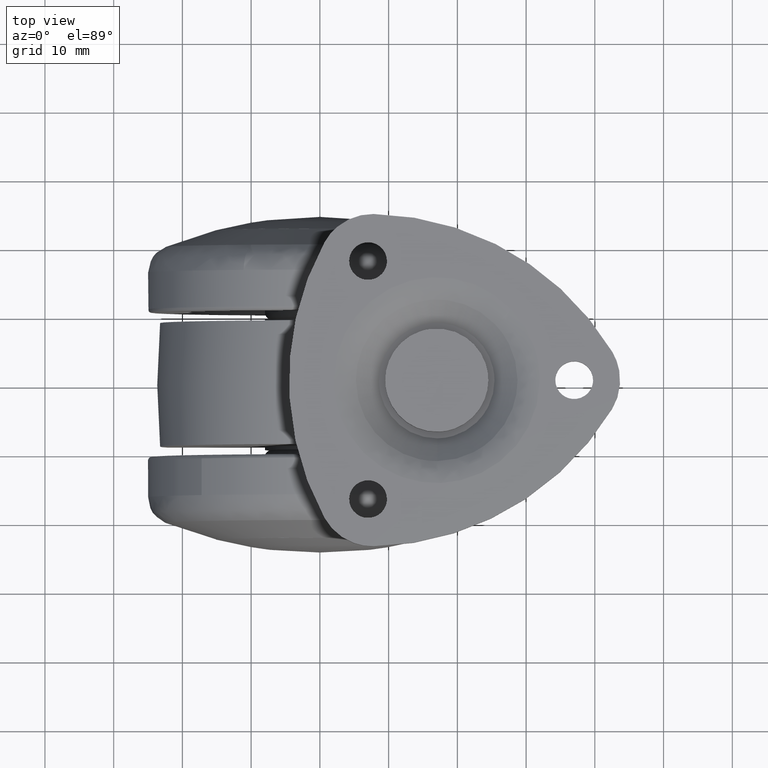
[diagram: clean part render]
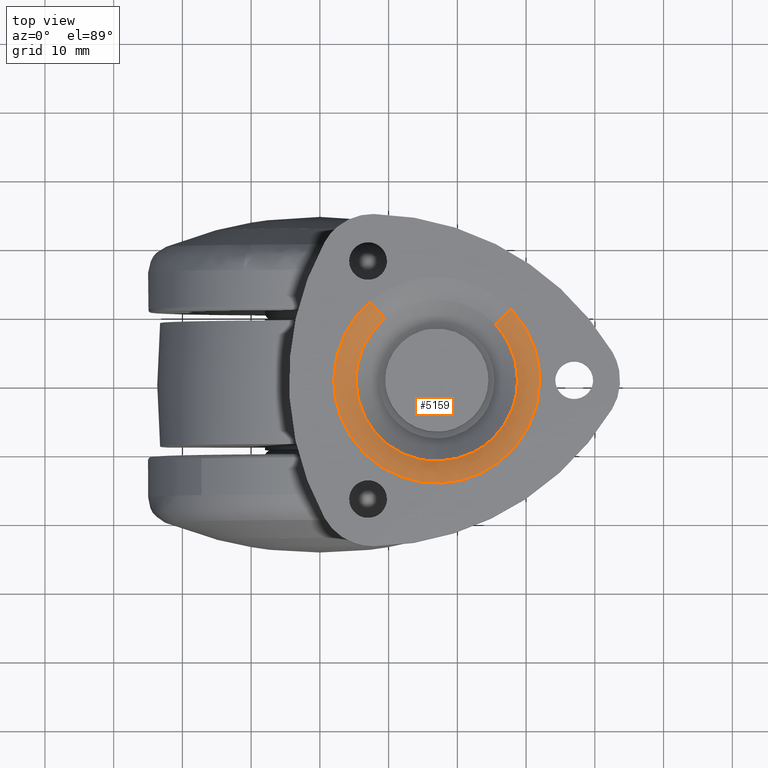
[diagram: same view with one face highlighted and labeled with its STEP entity id]
A machine part, top view. The second image highlights one B-rep face of the part: STEP entity #5159.
In plain terms, the highlighted face is a freeform B-spline surface patch.
Its self-contained STEP definition (entity closure, byte-faithful):
#3528=CARTESIAN_POINT('',(25.109645931739351,-8.515503311656913,38.824556818167473));
#3529=VERTEX_POINT('',#3528);
#3530=CARTESIAN_POINT('',(28.759258215934199,0.0,38.824556818167437));
#3531=VERTEX_POINT('',#3530);
#3532=CARTESIAN_POINT('',(25.109645931739347,-8.515503311656913,38.824556818167459));
#3533=CARTESIAN_POINT('',(28.759258215934203,-5.039835188500454,38.824556818167444));
#3534=CARTESIAN_POINT('',(28.759258215934199,0.0,38.824556818167437));
#3542=(BOUNDED_CURVE()B_SPLINE_CURVE(2,(#3532,#3533,#3534),.UNSPECIFIED.,.F.,.U.)B_SPLINE_CURVE_WITH_KNOTS((3,3),(0.871317023849570,1.0),.UNSPECIFIED.)CURVE()GEOMETRIC_REPRESENTATION_ITEM()RATIONAL_B_SPLINE_CURVE((0.853680523245774,0.849238515635224,1.0))REPRESENTATION_ITEM(''));
#3543=EDGE_CURVE('',#3529,#3531,#3542,.T.);
#3545=CARTESIAN_POINT('',(25.515912687140251,8.109216047239515,38.824556818410457));
#3546=VERTEX_POINT('',#3545);
#3547=CARTESIAN_POINT('',(28.759258215934199,0.0,38.824556818167437));
#3548=CARTESIAN_POINT('',(28.759258215934199,4.703208958527371,38.824556818167444));
#3549=CARTESIAN_POINT('',(25.515912687140251,8.109216047239515,38.824556818410471));
#3557=(BOUNDED_CURVE()B_SPLINE_CURVE(2,(#3547,#3548,#3549),.UNSPECIFIED.,.F.,.U.)B_SPLINE_CURVE_WITH_KNOTS((3,3),(0.0,0.121309405660615),.UNSPECIFIED.)CURVE()GEOMETRIC_REPRESENTATION_ITEM()RATIONAL_B_SPLINE_CURVE((1.0,0.857877190814862,0.853681049734253))REPRESENTATION_ITEM(''));
#3558=EDGE_CURVE('',#3531,#3546,#3557,.T.);
#3560=CARTESIAN_POINT('',(9.391101867600671,8.965758361935453,38.824556818340369));
#3561=VERTEX_POINT('',#3560);
#3577=CARTESIAN_POINT('',(5.240741784065802,0.0,38.824556818167437));
#3578=VERTEX_POINT('',#3577);
#3579=CARTESIAN_POINT('',(9.391101867600671,8.965758361935453,38.824556818340376));
#3580=CARTESIAN_POINT('',(5.240741784065802,5.443505606946551,38.824556818167444));
#3581=CARTESIAN_POINT('',(5.240741784065802,0.0,38.824556818167437));
#3589=(BOUNDED_CURVE()B_SPLINE_CURVE(2,(#3579,#3580,#3581),.UNSPECIFIED.,.F.,.U.)B_SPLINE_CURVE_WITH_KNOTS((3,3),(0.362668370166600,0.500000000000000),.UNSPECIFIED.)CURVE()GEOMETRIC_REPRESENTATION_ITEM()RATIONAL_B_SPLINE_CURVE((0.854978670802094,0.839105987572791,1.0))REPRESENTATION_ITEM(''));
#3590=EDGE_CURVE('',#3561,#3578,#3589,.T.);
#3592=CARTESIAN_POINT('',(17.102617584279649,-11.758810459416919,38.824556818170322));
#3593=VERTEX_POINT('',#3592);
#3594=CARTESIAN_POINT('',(5.240741784065802,0.0,38.824556818167437));
#3595=CARTESIAN_POINT('',(5.240741784065801,-11.759258215934201,38.824556818167444));
#3596=CARTESIAN_POINT('',(17.0,-11.759258215934199,38.824556818167437));
#3597=CARTESIAN_POINT('',(17.051309769011041,-11.759258215934207,38.824556818167437));
#3598=CARTESIAN_POINT('',(17.102617584279649,-11.758810459416926,38.824556818170329));
#3606=(BOUNDED_CURVE()B_SPLINE_CURVE(2,(#3594,#3595,#3596,#3597,#3598),.UNSPECIFIED.,.F.,.U.)B_SPLINE_CURVE_WITH_KNOTS((3,2,3),(0.500000000000000,0.750000000000000,0.751539894335697),.UNSPECIFIED.)CURVE()GEOMETRIC_REPRESENTATION_ITEM()RATIONAL_B_SPLINE_CURVE((1.0,0.707106781186548,1.0,0.998195901565540,0.996414028098762))REPRESENTATION_ITEM(''));
#3607=EDGE_CURVE('',#3578,#3593,#3606,.T.);
#3687=CARTESIAN_POINT('',(17.102617584279653,-11.758810459416923,38.824556818170322));
#3688=CARTESIAN_POINT('',(21.746578891394577,-11.718283223042187,38.824556818167451));
#3689=CARTESIAN_POINT('',(25.109645931739347,-8.515503311656913,38.824556818167451));
#3697=(BOUNDED_CURVE()B_SPLINE_CURVE(2,(#3687,#3688,#3689),.UNSPECIFIED.,.F.,.U.)B_SPLINE_CURVE_WITH_KNOTS((3,3),(0.751539894335698,0.871317023849569),.UNSPECIFIED.)CURVE()GEOMETRIC_REPRESENTATION_ITEM()RATIONAL_B_SPLINE_CURVE((0.996414028098761,0.857815109939268,0.853680523245775))REPRESENTATION_ITEM(''));
#3698=EDGE_CURVE('',#3593,#3529,#3697,.T.);
#5042=CARTESIAN_POINT('',(25.422797707489323,8.020547097333477,38.712476081333904));
#5043=CARTESIAN_POINT('',(25.652342098049008,7.779490478238755,38.712476081333882));
#5044=CARTESIAN_POINT('',(25.867724198574585,7.525700266410195,38.712476081333890));
#5045=CARTESIAN_POINT('',(33.393424464984768,-1.342023932164390,38.712476081333890));
#5046=CARTESIAN_POINT('',(24.525700266410201,-8.867724198574585,38.712476081333890));
#5047=CARTESIAN_POINT('',(15.657976067835619,-16.393424464984776,38.712476081333890));
#5048=CARTESIAN_POINT('',(8.132275801425420,-7.525700266410201,38.712476081333890));
#5049=CARTESIAN_POINT('',(0.606575535015222,1.342023932164395,38.712476081333890));
#5050=CARTESIAN_POINT('',(9.474299733589803,8.867724198574582,38.712476081333890));
#5051=CARTESIAN_POINT('',(26.509402355418093,9.055258372322896,40.066121913860378));
#5052=CARTESIAN_POINT('',(26.768559709550015,8.783103625050480,40.066121913860371));
#5053=CARTESIAN_POINT('',(27.011727731053341,8.496572555213835,40.066121913860378));
#5054=CARTESIAN_POINT('',(35.508300286267151,-1.515155175839499,40.066121913860371));
#5055=CARTESIAN_POINT('',(25.496572555213845,-10.011727731053334,40.066121913860378));
#5056=CARTESIAN_POINT('',(15.484844824160504,-18.508300286267158,40.066121913860371));
#5057=CARTESIAN_POINT('',(6.988272268946675,-8.496572555213840,40.066121913860378));
#5058=CARTESIAN_POINT('',(-1.508300286267163,1.515155175839505,40.066121913860371));
#5059=CARTESIAN_POINT('',(8.503427444786164,10.011727731053329,40.066121913860378));
#5060=CARTESIAN_POINT('',(27.971998041178963,10.448004344551462,39.997081054640596));
#5061=CARTESIAN_POINT('',(28.271015148208029,10.133990777519127,39.997081054640603));
#5062=CARTESIAN_POINT('',(28.551583679845727,9.803389734521577,39.997081054640603));
#5063=CARTESIAN_POINT('',(38.354973414367308,-1.748193945324152,39.997081054640603));
#5064=CARTESIAN_POINT('',(26.803389734521573,-11.551583679845729,39.997081054640603));
#5065=CARTESIAN_POINT('',(15.251806054675846,-21.354973414367294,39.997081054640603));
#5066=CARTESIAN_POINT('',(5.448416320154279,-9.803389734521581,39.997081054640603));
#5067=CARTESIAN_POINT('',(-4.354973414367299,1.748193945324158,39.997081054640603));
#5068=CARTESIAN_POINT('',(7.196610265478419,11.551583679845718,39.997081054640603));
#5076=(BOUNDED_SURFACE()B_SPLINE_SURFACE(2,2,((#5042,#5051,#5060),(#5043,#5052,#5061),(#5044,#5053,#5062),(#5045,#5054,#5063),(#5046,#5055,#5064),(#5047,#5056,#5065),(#5048,#5057,#5066),(#5049,#5058,#5067),(#5050,#5059,#5068)),.UNSPECIFIED.,.F.,.F.,.U.)B_SPLINE_SURFACE_WITH_KNOTS((3,2,2,2,3),(3,3),(0.0,1.004103101768524,26.106704585687940,51.209306069607358,76.311907553526780),(0.0,3.888826031037972),.UNSPECIFIED.)GEOMETRIC_REPRESENTATION_ITEM()RATIONAL_B_SPLINE_SURFACE(((0.914206139732647,0.846881371219132,0.912663297419820),(0.924286627305292,0.856219502705074,0.922726772852550),(0.935243678106041,0.866369644782843,0.933665332198402),(0.661317146850630,0.612615850840129,0.660201087756281),(0.935243678106041,0.866369644782843,0.933665332198402),(0.661317146850630,0.612615850840129,0.660201087756281),(0.935243678106041,0.866369644782843,0.933665332198402),(0.661317146850630,0.612615850840129,0.660201087756281),(0.935243678106041,0.866369644782843,0.933665332198402)))REPRESENTATION_ITEM('')SURFACE());
#5077=ORIENTED_EDGE('',*,*,#3558,.F.);
#5078=ORIENTED_EDGE('',*,*,#3543,.F.);
#5079=ORIENTED_EDGE('',*,*,#3698,.F.);
#5080=ORIENTED_EDGE('',*,*,#3607,.F.);
#5081=ORIENTED_EDGE('',*,*,#3590,.F.);
#5082=CARTESIAN_POINT('',(7.307143132013712,11.421339989438801,40.0));
#5083=VERTEX_POINT('',#5082);
#5084=CARTESIAN_POINT('',(9.391101867600673,8.965758361935453,38.824556818340376));
#5085=CARTESIAN_POINT('',(8.487915593746065,10.030005740004469,39.999999999736524));
#5086=CARTESIAN_POINT('',(7.307143132013712,11.421339989438799,40.000000000000007));
#5094=(BOUNDED_CURVE()B_SPLINE_CURVE(2,(#5084,#5085,#5086),.UNSPECIFIED.,.F.,.U.)B_SPLINE_CURVE_WITH_KNOTS((3,3),(-1.538326540372698,-0.475227343792402),.UNSPECIFIED.)CURVE()GEOMETRIC_REPRESENTATION_ITEM()RATIONAL_B_SPLINE_CURVE((0.929268955684252,0.872272715189837,0.927833915084224))REPRESENTATION_ITEM(''));
#5095=EDGE_CURVE('',#3561,#5083,#5094,.T.);
#5096=ORIENTED_EDGE('',*,*,#5095,.T.);
#5097=CARTESIAN_POINT('',(2.020064037906002,0.0,40.0));
#5098=VERTEX_POINT('',#5097);
#5099=CARTESIAN_POINT('',(2.020064037906002,0.0,40.0));
#5100=CARTESIAN_POINT('',(2.020064037906001,6.934397043072038,39.999999999999993));
#5101=CARTESIAN_POINT('',(7.307143132013712,11.421339989438795,39.999999999999993));
#5109=(BOUNDED_CURVE()B_SPLINE_CURVE(2,(#5099,#5100,#5101),.UNSPECIFIED.,.F.,.U.)B_SPLINE_CURVE_WITH_KNOTS((3,3),(0.0,0.137331629833309),.UNSPECIFIED.)CURVE()GEOMETRIC_REPRESENTATION_ITEM()RATIONAL_B_SPLINE_CURVE((1.0,0.839105987572898,0.854978670802073))REPRESENTATION_ITEM(''));
#5110=EDGE_CURVE('',#5098,#5083,#5109,.T.);
#5111=ORIENTED_EDGE('',*,*,#5110,.F.);
#5112=CARTESIAN_POINT('',(31.979935962094000,0.0,40.0));
#5113=VERTEX_POINT('',#5112);
#5114=CARTESIAN_POINT('',(31.979935962094000,0.0,40.0));
#5115=CARTESIAN_POINT('',(31.979935962094007,-14.979935962094004,39.999999999999993));
#5116=CARTESIAN_POINT('',(17.0,-14.979935962094000,40.0));
#5117=CARTESIAN_POINT('',(2.020064037906002,-14.979935962094004,39.999999999999993));
#5118=CARTESIAN_POINT('',(2.020064037906002,0.0,40.0));
#5126=(BOUNDED_CURVE()B_SPLINE_CURVE(2,(#5114,#5115,#5116,#5117,#5118),.UNSPECIFIED.,.F.,.U.)B_SPLINE_CURVE_WITH_KNOTS((3,2,3),(0.500000000000000,0.750000000000000,1.0),.UNSPECIFIED.)CURVE()GEOMETRIC_REPRESENTATION_ITEM()RATIONAL_B_SPLINE_CURVE((1.0,0.707106781186548,1.0,0.707106781186548,1.0))REPRESENTATION_ITEM(''));
#5127=EDGE_CURVE('',#5113,#5098,#5126,.T.);
#5128=ORIENTED_EDGE('',*,*,#5127,.F.);
#5129=CARTESIAN_POINT('',(27.848288588014960,10.330204070294050,40.0));
#5130=VERTEX_POINT('',#5129);
#5131=CARTESIAN_POINT('',(27.848288588014956,10.330204070294053,40.0));
#5132=CARTESIAN_POINT('',(31.979935962094000,5.991344668285297,40.000000000000007));
#5133=CARTESIAN_POINT('',(31.979935962094000,0.0,40.0));
#5141=(BOUNDED_CURVE()B_SPLINE_CURVE(2,(#5131,#5132,#5133),.UNSPECIFIED.,.F.,.U.)B_SPLINE_CURVE_WITH_KNOTS((3,3),(0.378690594339473,0.500000000000000),.UNSPECIFIED.)CURVE()GEOMETRIC_REPRESENTATION_ITEM()RATIONAL_B_SPLINE_CURVE((0.853681049734259,0.857877190814965,1.0))REPRESENTATION_ITEM(''));
#5142=EDGE_CURVE('',#5130,#5113,#5141,.T.);
#5143=ORIENTED_EDGE('',*,*,#5142,.F.);
#5144=CARTESIAN_POINT('',(25.515912687140258,8.109216047239517,38.824556818410464));
#5145=CARTESIAN_POINT('',(26.526762788649730,9.071790719570183,39.999999999862055));
#5146=CARTESIAN_POINT('',(27.848288588014952,10.330204070294052,39.999999999999993));
#5154=(BOUNDED_CURVE()B_SPLINE_CURVE(2,(#5144,#5145,#5146),.UNSPECIFIED.,.F.,.U.)B_SPLINE_CURVE_WITH_KNOTS((3,3),(-1.538326540305156,-0.475227343685829),.UNSPECIFIED.)CURVE()GEOMETRIC_REPRESENTATION_ITEM()RATIONAL_B_SPLINE_CURVE((0.908365794673107,0.852651638971247,0.906963034180171))REPRESENTATION_ITEM(''));
#5155=EDGE_CURVE('',#3546,#5130,#5154,.T.);
#5156=ORIENTED_EDGE('',*,*,#5155,.F.);
#5157=EDGE_LOOP('',(#5077,#5078,#5079,#5080,#5081,#5096,#5111,#5128,#5143,#5156));
#5158=FACE_OUTER_BOUND('',#5157,.T.);
#5159=ADVANCED_FACE('',(#5158),#5076,.T.);